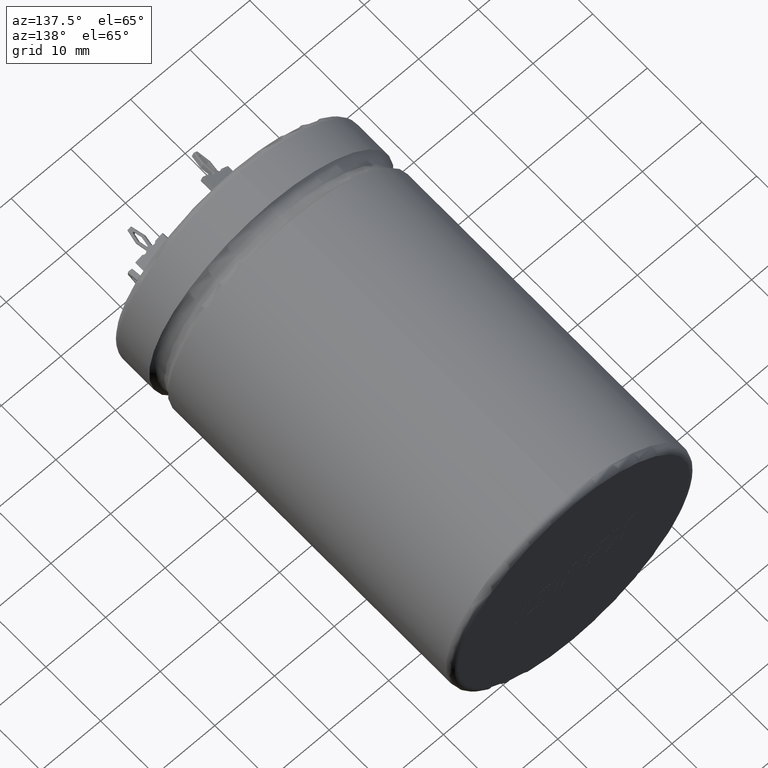
[diagram: clean part render]
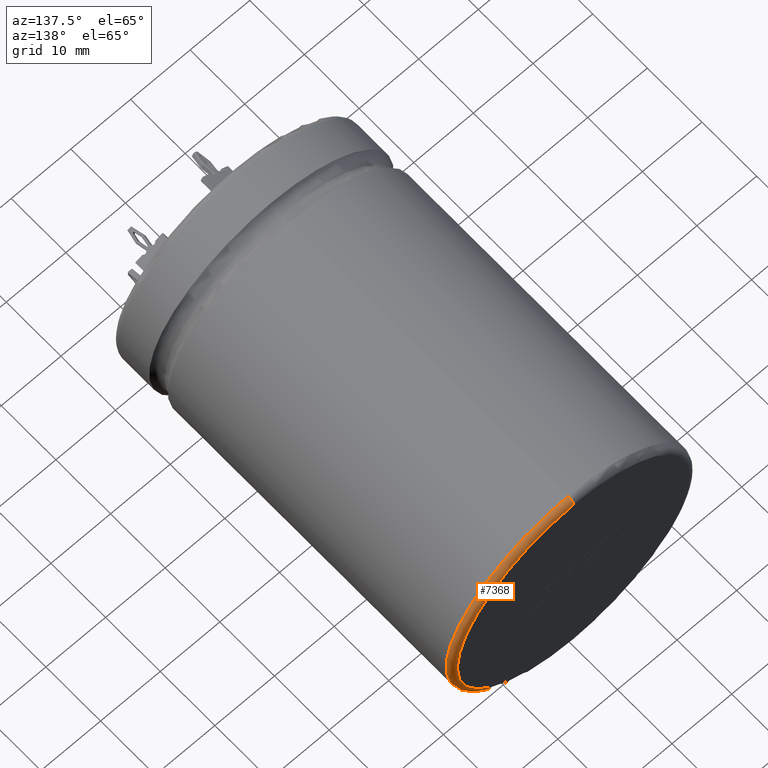
[diagram: same view with one face highlighted and labeled with its STEP entity id]
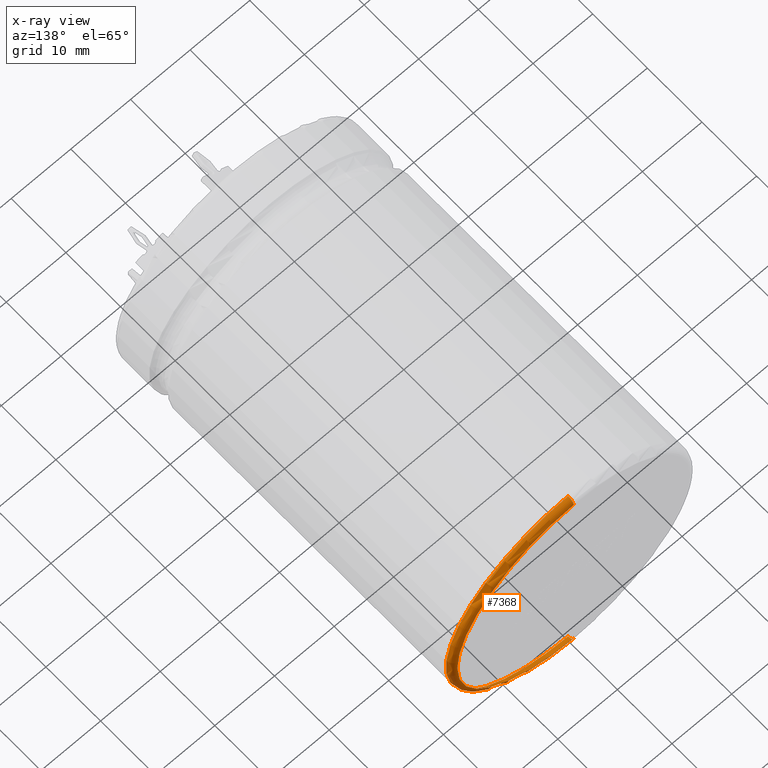
[diagram: x-ray of the same camera — body ghosted, the highlighted face saturated]
A machine part, auxiliary view. The second image highlights one B-rep face of the part: STEP entity #7368.
The next image is the same camera in x-ray: the body ghosted, the highlighted face saturated — about 0% of this face is hidden behind the body in this view.
In plain terms, the highlighted toroidal blend (fillet) surface has major radius 19.5 mm and minor (blend) radius 1 mm.
Its self-contained STEP definition (entity closure, byte-faithful):
#70 = ORIENTED_EDGE ( 'NONE', *, *, #4710, .F. ) ;
#2314 = DIRECTION ( 'NONE',  ( 0.0000000000000000000, 0.0000000000000000000, 1.000000000000000000 ) ) ;
#2549 = ORIENTED_EDGE ( 'NONE', *, *, #11927, .T. ) ;
#2963 = AXIS2_PLACEMENT_3D ( 'NONE', #4759, #10198, #3278 ) ;
#3003 = ORIENTED_EDGE ( 'NONE', *, *, #6050, .F. ) ;
#3278 = DIRECTION ( 'NONE',  ( 1.224646799147353500E-016, 0.0000000000000000000, -1.000000000000000000 ) ) ;
#3394 = CARTESIAN_POINT ( 'NONE',  ( 0.0000000000000000000, 61.00000000000000000, 0.0000000000000000000 ) ) ;
#3962 = AXIS2_PLACEMENT_3D ( 'NONE', #3394, #12680, #4684 ) ;
#4684 = DIRECTION ( 'NONE',  ( 0.0000000000000000000, 0.0000000000000000000, 1.000000000000000000 ) ) ;
#4710 = EDGE_CURVE ( 'NONE', #7850, #12043, #10992, .T. ) ;
#4759 = CARTESIAN_POINT ( 'NONE',  ( 2.388061258337338900E-015, 61.00000000000000000, -19.50000000000000000 ) ) ;
#4789 = FACE_OUTER_BOUND ( 'NONE', #11074, .T. ) ;
#4908 = CARTESIAN_POINT ( 'NONE',  ( 0.0000000000000000000, 62.00000000000000000, 19.50000000000000000 ) ) ;
#6050 = EDGE_CURVE ( 'NONE', #10041, #16773, #7815, .T. ) ;
#6227 = TOROIDAL_SURFACE ( 'NONE', #3962, 19.50000000000000000, 1.000000000000000000 ) ;
#6405 = CIRCLE ( 'NONE', #2963, 1.000000000000000900 ) ;
#7368 = ADVANCED_FACE ( 'NONE', ( #4789 ), #6227, .T. ) ;
#7815 = CIRCLE ( 'NONE', #16248, 20.50000000000000000 ) ;
#7850 = VERTEX_POINT ( 'NONE', #4908 ) ;
#7905 = CARTESIAN_POINT ( 'NONE',  ( 2.510525938252074500E-015, 61.00000000000000000, 20.50000000000000000 ) ) ;
#8375 = EDGE_CURVE ( 'NONE', #16773, #7850, #16298, .T. ) ;
#9142 = DIRECTION ( 'NONE',  ( 0.0000000000000000000, 1.000000000000000000, 0.0000000000000000000 ) ) ;
#9396 = DIRECTION ( 'NONE',  ( -1.000000000000000000, 0.0000000000000000000, 0.0000000000000000000 ) ) ;
#10041 = VERTEX_POINT ( 'NONE', #16178 ) ;
#10198 = DIRECTION ( 'NONE',  ( 1.000000000000000000, -0.0000000000000000000, 1.224646799147353200E-016 ) ) ;
#10992 = CIRCLE ( 'NONE', #13964, 19.50000000000000000 ) ;
#11074 = EDGE_LOOP ( 'NONE', ( #3003, #2549, #70, #15976 ) ) ;
#11272 = CARTESIAN_POINT ( 'NONE',  ( 2.449293598294706500E-015, 62.00000000000000000, -19.50000000000000000 ) ) ;
#11927 = EDGE_CURVE ( 'NONE', #10041, #12043, #6405, .T. ) ;
#12043 = VERTEX_POINT ( 'NONE', #11272 ) ;
#12680 = DIRECTION ( 'NONE',  ( 0.0000000000000000000, 1.000000000000000000, 0.0000000000000000000 ) ) ;
#13793 = DIRECTION ( 'NONE',  ( 0.0000000000000000000, 0.0000000000000000000, 1.000000000000000000 ) ) ;
#13925 = AXIS2_PLACEMENT_3D ( 'NONE', #14838, #9396, #14950 ) ;
#13964 = AXIS2_PLACEMENT_3D ( 'NONE', #15702, #9142, #2314 ) ;
#14838 = CARTESIAN_POINT ( 'NONE',  ( 0.0000000000000000000, 61.00000000000000000, 19.50000000000000000 ) ) ;
#14950 = DIRECTION ( 'NONE',  ( 0.0000000000000000000, 0.0000000000000000000, 1.000000000000000000 ) ) ;
#15035 = DIRECTION ( 'NONE',  ( -0.0000000000000000000, -1.000000000000000000, -0.0000000000000000000 ) ) ;
#15210 = CARTESIAN_POINT ( 'NONE',  ( 0.0000000000000000000, 61.00000000000000000, 0.0000000000000000000 ) ) ;
#15702 = CARTESIAN_POINT ( 'NONE',  ( 0.0000000000000000000, 62.00000000000000000, 0.0000000000000000000 ) ) ;
#15976 = ORIENTED_EDGE ( 'NONE', *, *, #8375, .F. ) ;
#16178 = CARTESIAN_POINT ( 'NONE',  ( 0.0000000000000000000, 61.00000000000000000, -20.50000000000000000 ) ) ;
#16248 = AXIS2_PLACEMENT_3D ( 'NONE', #15210, #15035, #13793 ) ;
#16298 = CIRCLE ( 'NONE', #13925, 1.000000000000000900 ) ;
#16773 = VERTEX_POINT ( 'NONE', #7905 ) ;